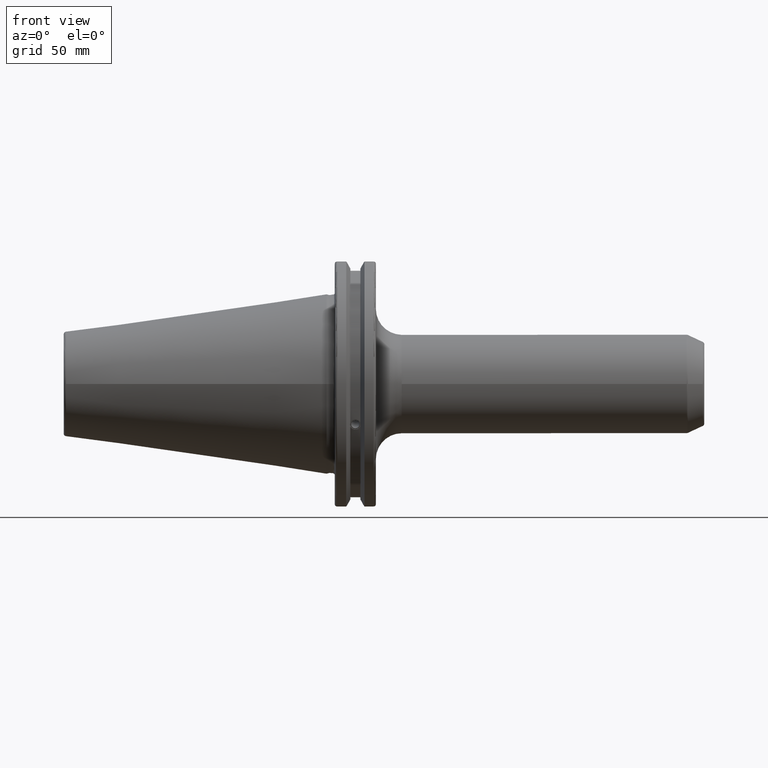
[diagram: clean part render]
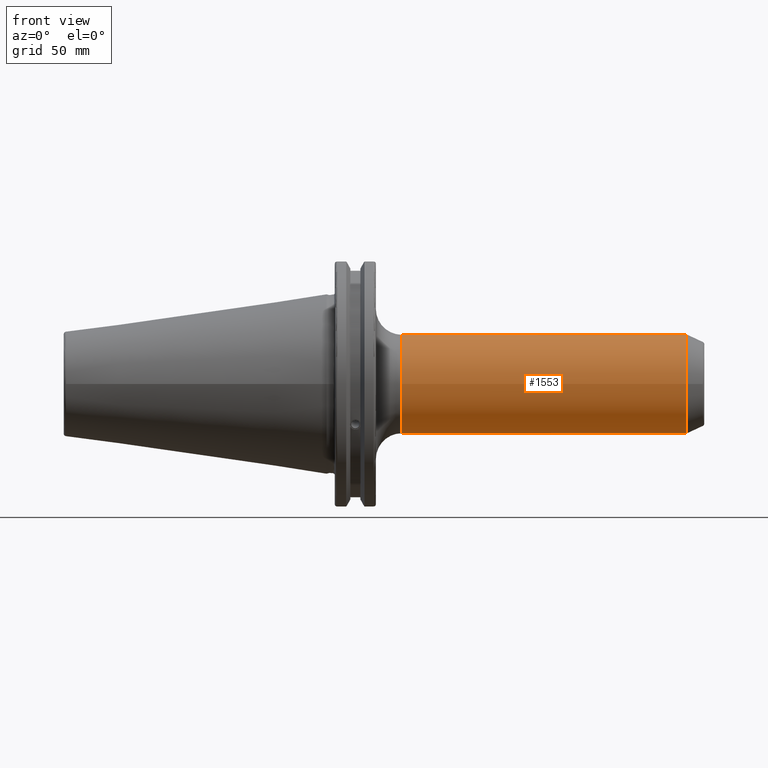
[diagram: same view with one face highlighted and labeled with its STEP entity id]
A machine part, front view. The second image highlights one B-rep face of the part: STEP entity #1553.
In plain terms, the highlighted cylindrical surface (bore or boss wall) has radius 19.05 mm, axis along (1, 0, 0).
Its self-contained STEP definition (entity closure, byte-faithful):
#33=FACE_BOUND('',#213,.T.);
#122=FACE_OUTER_BOUND('',#212,.T.);
#212=EDGE_LOOP('',(#1063,#1064,#1065,#1066,#1067,#1068));
#213=EDGE_LOOP('',(#1069,#1070,#1071,#1072,#1073,#1074,#1075,#1076,#1077));
#317=LINE('',#2342,#414);
#318=LINE('',#2345,#415);
#319=LINE('',#2348,#416);
#320=LINE('',#2351,#417);
#321=LINE('',#2394,#418);
#414=VECTOR('',#1845,10.);
#415=VECTOR('',#1848,10.);
#416=VECTOR('',#1851,10.);
#417=VECTOR('',#1854,10.);
#418=VECTOR('',#1873,19.05);
#514=CIRCLE('',#1670,19.05);
#517=CIRCLE('',#1673,19.05);
#518=CIRCLE('',#1675,19.05);
#519=CIRCLE('',#1676,19.05);
#592=B_SPLINE_CURVE_WITH_KNOTS('',3,(#2285,#2286,#2287,#2288),
 .UNSPECIFIED.,.F.,.F.,(4,4),(-0.198875152306486,0.),.UNSPECIFIED.);
#593=B_SPLINE_CURVE_WITH_KNOTS('',3,(#2292,#2293,#2294,#2295,#2296,#2297),
 .UNSPECIFIED.,.F.,.F.,(4,2,4),(1.51929806037942,1.71817321280368,1.91704836522795),
 .UNSPECIFIED.);
#594=B_SPLINE_CURVE_WITH_KNOTS('',3,(#2300,#2301,#2302,#2303),
 .UNSPECIFIED.,.F.,.F.,(4,4),(0.,0.198875152424267),.UNSPECIFIED.);
#596=B_SPLINE_CURVE_WITH_KNOTS('',3,(#2353,#2354,#2355,#2356,#2357,#2358,
#2359,#2360,#2361,#2362,#2363,#2364,#2365,#2366),.UNSPECIFIED.,.F.,.F.,
(4,2,2,2,2,2,4),(2.08681235130618,2.31208481756859,2.54820526477995,2.7843257119913,
3.02044615920265,3.256566606414,3.48183907267642),.UNSPECIFIED.);
#597=B_SPLINE_CURVE_WITH_KNOTS('',3,(#2368,#2369,#2370,#2371,#2372,#2373,
#2374,#2375,#2376,#2377,#2378,#2379,#2380,#2381),.UNSPECIFIED.,.F.,.F.,
(4,2,2,2,2,2,4),(0.230595209978646,0.455867676241063,0.691988123452414,
0.928108570663765,1.16422901787512,1.40034946508647,1.62562193134889),
 .UNSPECIFIED.);
#636=VERTEX_POINT('',#2283);
#637=VERTEX_POINT('',#2284);
#638=VERTEX_POINT('',#2289);
#639=VERTEX_POINT('',#2291);
#640=VERTEX_POINT('',#2298);
#642=VERTEX_POINT('',#2341);
#643=VERTEX_POINT('',#2343);
#644=VERTEX_POINT('',#2347);
#645=VERTEX_POINT('',#2349);
#646=VERTEX_POINT('',#2383);
#647=VERTEX_POINT('',#2384);
#649=VERTEX_POINT('',#2391);
#650=VERTEX_POINT('',#2392);
#797=EDGE_CURVE('',#636,#637,#592,.T.);
#799=EDGE_CURVE('',#639,#638,#593,.T.);
#801=EDGE_CURVE('',#637,#640,#594,.T.);
#804=EDGE_CURVE('',#642,#636,#317,.T.);
#806=EDGE_CURVE('',#638,#643,#318,.T.);
#807=EDGE_CURVE('',#644,#639,#319,.T.);
#809=EDGE_CURVE('',#640,#645,#320,.T.);
#810=EDGE_CURVE('',#645,#644,#596,.T.);
#811=EDGE_CURVE('',#643,#642,#597,.T.);
#812=EDGE_CURVE('',#646,#647,#514,.T.);
#815=EDGE_CURVE('',#647,#646,#517,.T.);
#816=EDGE_CURVE('',#649,#650,#518,.T.);
#817=EDGE_CURVE('',#649,#646,#321,.T.);
#818=EDGE_CURVE('',#650,#649,#519,.T.);
#1063=ORIENTED_EDGE('',*,*,#816,.F.);
#1064=ORIENTED_EDGE('',*,*,#817,.T.);
#1065=ORIENTED_EDGE('',*,*,#815,.F.);
#1066=ORIENTED_EDGE('',*,*,#812,.F.);
#1067=ORIENTED_EDGE('',*,*,#817,.F.);
#1068=ORIENTED_EDGE('',*,*,#818,.F.);
#1069=ORIENTED_EDGE('',*,*,#797,.T.);
#1070=ORIENTED_EDGE('',*,*,#801,.T.);
#1071=ORIENTED_EDGE('',*,*,#809,.T.);
#1072=ORIENTED_EDGE('',*,*,#810,.T.);
#1073=ORIENTED_EDGE('',*,*,#807,.T.);
#1074=ORIENTED_EDGE('',*,*,#799,.T.);
#1075=ORIENTED_EDGE('',*,*,#806,.T.);
#1076=ORIENTED_EDGE('',*,*,#811,.T.);
#1077=ORIENTED_EDGE('',*,*,#804,.T.);
#1521=CYLINDRICAL_SURFACE('',#1674,19.05);
#1553=ADVANCED_FACE('',(#122,#33),#1521,.T.);
#1670=AXIS2_PLACEMENT_3D('',#2385,#1861,#1862);
#1673=AXIS2_PLACEMENT_3D('',#2389,#1867,#1868);
#1674=AXIS2_PLACEMENT_3D('',#2390,#1869,#1870);
#1675=AXIS2_PLACEMENT_3D('',#2393,#1871,#1872);
#1676=AXIS2_PLACEMENT_3D('',#2395,#1874,#1875);
#1845=DIRECTION('',(-1.,0.,0.));
#1848=DIRECTION('',(1.,0.,0.));
#1851=DIRECTION('',(1.,0.,0.));
#1854=DIRECTION('',(-1.,0.,0.));
#1861=DIRECTION('center_axis',(-1.,0.,0.));
#1862=DIRECTION('ref_axis',(0.,-1.,-1.22464679914735E-16));
#1867=DIRECTION('center_axis',(-1.,0.,0.));
#1868=DIRECTION('ref_axis',(0.,-1.,-1.22464679914735E-16));
#1869=DIRECTION('center_axis',(1.,0.,0.));
#1870=DIRECTION('ref_axis',(0.,1.,0.));
#1871=DIRECTION('center_axis',(1.,0.,0.));
#1872=DIRECTION('ref_axis',(0.,-1.,1.83697019872103E-16));
#1873=DIRECTION('',(-1.,0.,0.));
#1874=DIRECTION('center_axis',(1.,0.,0.));
#1875=DIRECTION('ref_axis',(0.,-1.,1.83697019872103E-16));
#2283=CARTESIAN_POINT('',(125.617588074905,18.3,5.2926836293132));
#2284=CARTESIAN_POINT('',(123.6,18.1884396900889,5.6642));
#2285=CARTESIAN_POINT('Ctrl Pts',(125.617588074905,18.3,5.29268362931319));
#2286=CARTESIAN_POINT('Ctrl Pts',(124.964401540519,18.227985717898,5.54168044355094));
#2287=CARTESIAN_POINT('Ctrl Pts',(124.262917174355,18.1884396900889,5.6642));
#2288=CARTESIAN_POINT('Ctrl Pts',(123.6,18.1884396900889,5.6642));
#2289=CARTESIAN_POINT('',(125.617588074905,18.3,-5.2926836293132));
#2291=CARTESIAN_POINT('',(121.582411925095,18.3,-5.2926836293132));
#2292=CARTESIAN_POINT('Ctrl Pts',(121.582411925095,18.3,-5.29268362931319));
#2293=CARTESIAN_POINT('Ctrl Pts',(122.235598463846,18.2279857174168,-5.5416804452148));
#2294=CARTESIAN_POINT('Ctrl Pts',(122.937082825252,18.1884396900889,-5.6642));
#2295=CARTESIAN_POINT('Ctrl Pts',(124.262917174748,18.1884396900889,-5.6642));
#2296=CARTESIAN_POINT('Ctrl Pts',(124.964401536154,18.2279857174168,-5.5416804452148));
#2297=CARTESIAN_POINT('Ctrl Pts',(125.617588074905,18.3,-5.2926836293132));
#2298=CARTESIAN_POINT('',(121.582411925095,18.3,5.2926836293132));
#2300=CARTESIAN_POINT('Ctrl Pts',(123.6,18.1884396900889,5.6642));
#2301=CARTESIAN_POINT('Ctrl Pts',(122.937082825252,18.1884396900889,5.6642));
#2302=CARTESIAN_POINT('Ctrl Pts',(122.235598463846,18.2279857174168,5.5416804452148));
#2303=CARTESIAN_POINT('Ctrl Pts',(121.582411925095,18.3,5.2926836293132));
#2341=CARTESIAN_POINT('',(125.972235232855,18.3,5.29268362931319));
#2342=CARTESIAN_POINT('',(79.2546269462229,18.3,5.2926836293132));
#2343=CARTESIAN_POINT('',(125.972235232855,18.3,-5.29268362931319));
#2345=CARTESIAN_POINT('',(79.2546269462229,18.3,-5.2926836293132));
#2347=CARTESIAN_POINT('',(121.227764767145,18.3,-5.29268362931319));
#2348=CARTESIAN_POINT('',(79.2546269462229,18.3,-5.2926836293132));
#2349=CARTESIAN_POINT('',(121.227764767145,18.3,5.29268362931319));
#2351=CARTESIAN_POINT('',(79.2546269462229,18.3,5.2926836293132));
#2353=CARTESIAN_POINT('Ctrl Pts',(121.227764767145,18.3,5.29268362931319));
#2354=CARTESIAN_POINT('Ctrl Pts',(120.469862605926,18.3746025813236,5.03473750333255));
#2355=CARTESIAN_POINT('Ctrl Pts',(119.761258140878,18.4810414477752,4.64532566692658));
#2356=CARTESIAN_POINT('Ctrl Pts',(118.569767688724,18.6945332007022,3.69656694422684));
#2357=CARTESIAN_POINT('Ctrl Pts',(118.012617547568,18.8171755417142,3.05828629832274));
#2358=CARTESIAN_POINT('Ctrl Pts',(117.25205674703,18.9964768981653,1.60408318038809));
#2359=CARTESIAN_POINT('Ctrl Pts',(117.05,19.05,0.787068157371171));
#2360=CARTESIAN_POINT('Ctrl Pts',(117.05,19.05,-0.787068157371169));
#2361=CARTESIAN_POINT('Ctrl Pts',(117.25205674703,18.9964768981653,-1.60408318038808));
#2362=CARTESIAN_POINT('Ctrl Pts',(118.012617547568,18.8171755417142,-3.05828629832273));
#2363=CARTESIAN_POINT('Ctrl Pts',(118.569767688724,18.6945332007022,-3.69656694422683));
#2364=CARTESIAN_POINT('Ctrl Pts',(119.761258140878,18.4810414477752,-4.64532566692658));
#2365=CARTESIAN_POINT('Ctrl Pts',(120.469862605926,18.3746025813236,-5.03473750333255));
#2366=CARTESIAN_POINT('Ctrl Pts',(121.227764767145,18.3,-5.29268362931319));
#2368=CARTESIAN_POINT('Ctrl Pts',(125.972235232855,18.3,-5.2926836293132));
#2369=CARTESIAN_POINT('Ctrl Pts',(126.730137394074,18.3746025813236,-5.03473750333255));
#2370=CARTESIAN_POINT('Ctrl Pts',(127.438741859122,18.4810414477752,-4.64532566692658));
#2371=CARTESIAN_POINT('Ctrl Pts',(128.630232311276,18.6945332007022,-3.69656694422684));
#2372=CARTESIAN_POINT('Ctrl Pts',(129.187382452432,18.8171755417142,-3.05828629832274));
#2373=CARTESIAN_POINT('Ctrl Pts',(129.94794325297,18.9964768981653,-1.6040831803881));
#2374=CARTESIAN_POINT('Ctrl Pts',(130.15,19.05,-0.78706815737117));
#2375=CARTESIAN_POINT('Ctrl Pts',(130.15,19.05,0.78706815737117));
#2376=CARTESIAN_POINT('Ctrl Pts',(129.94794325297,18.9964768981653,1.60408318038809));
#2377=CARTESIAN_POINT('Ctrl Pts',(129.187382452432,18.8171755417142,3.05828629832274));
#2378=CARTESIAN_POINT('Ctrl Pts',(128.630232311276,18.6945332007022,3.69656694422684));
#2379=CARTESIAN_POINT('Ctrl Pts',(127.438741859122,18.4810414477752,4.64532566692659));
#2380=CARTESIAN_POINT('Ctrl Pts',(126.730137394074,18.3746025813236,5.03473750333255));
#2381=CARTESIAN_POINT('Ctrl Pts',(125.972235232855,18.3,5.2926836293132));
#2383=CARTESIAN_POINT('',(29.05,-19.05,-2.33295215237571E-15));
#2384=CARTESIAN_POINT('',(29.05,-2.33295215237571E-15,-19.05));
#2385=CARTESIAN_POINT('Origin',(29.05,0.,0.));
#2389=CARTESIAN_POINT('Origin',(29.05,0.,0.));
#2390=CARTESIAN_POINT('Origin',(79.2546269462229,0.,0.));
#2391=CARTESIAN_POINT('',(139.237559229803,-19.05,-2.33295215237571E-15));
#2392=CARTESIAN_POINT('',(139.237559229803,-2.33295215237571E-15,19.05));
#2393=CARTESIAN_POINT('Origin',(139.237559229803,0.,0.));
#2394=CARTESIAN_POINT('',(79.2546269462229,-19.05,-2.33295215237571E-15));
#2395=CARTESIAN_POINT('Origin',(139.237559229803,0.,0.));